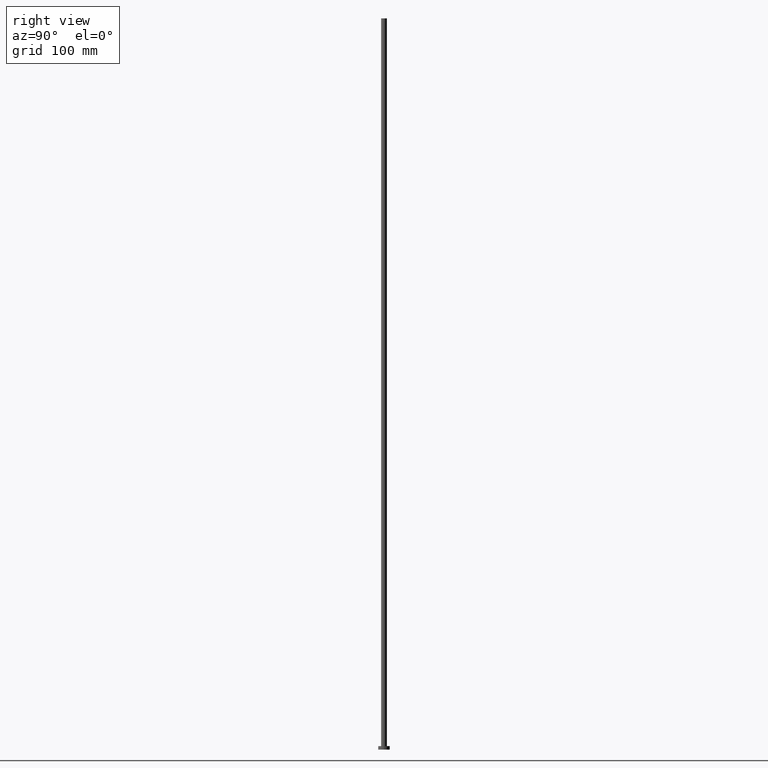
[diagram: clean part render]
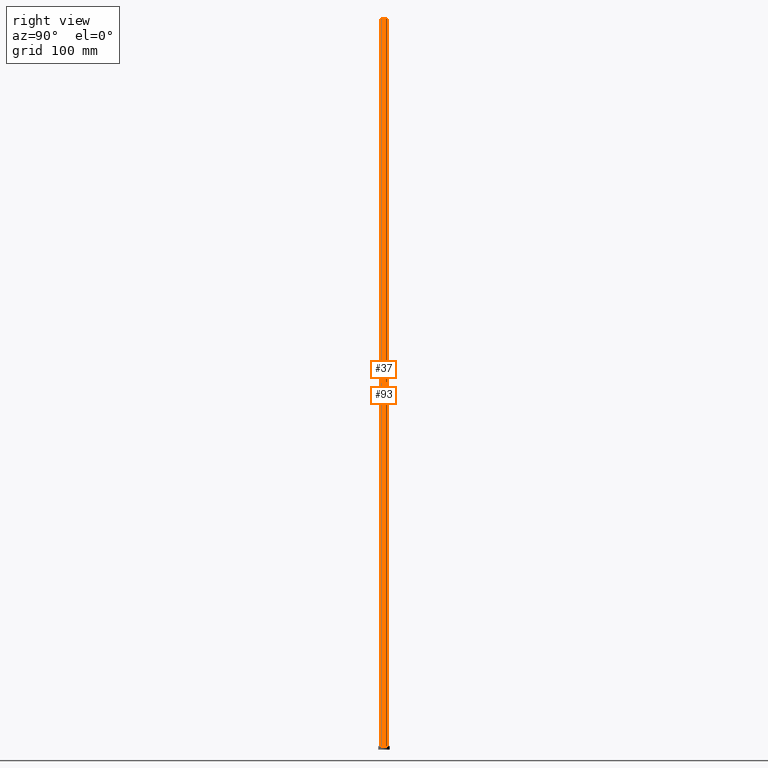
[diagram: same view with one multi-face feature highlighted, each face labeled with its STEP entity id]
A machine part, right view. The highlighted faces form ONE feature: a constant-radius fillet chain: 2 tangent blend faces with common blend radius 2.5 mm. The faces share edges in the B-rep.
Their STEP definitions:
[1] entity #93 (Cylinder):
#1 = ORIENTED_EDGE ( 'NONE', *, *, #57, .T. ) ;
#4 = EDGE_CURVE ( 'NONE', #45, #6, #225, .T. ) ;
#6 = VERTEX_POINT ( 'NONE', #233 ) ;
#31 = FACE_OUTER_BOUND ( 'NONE', #213, .T. ) ;
#38 = CARTESIAN_POINT ( 'NONE',  ( -2.500000000000000000, 0.000000000000000000, 630.0000000000000000 ) ) ;
#45 = VERTEX_POINT ( 'NONE', #38 ) ;
#51 = VECTOR ( 'NONE', #148, 1000.000000000000000 ) ;
#52 = EDGE_CURVE ( 'NONE', #137, #45, #241, .T. ) ;
#56 = DIRECTION ( 'NONE',  ( 1.000000000000000000, 0.000000000000000000, 0.000000000000000000 ) ) ;
#57 = EDGE_CURVE ( 'NONE', #121, #6, #170, .T. ) ;
#92 = DIRECTION ( 'NONE',  ( 0.000000000000000000, 0.000000000000000000, 1.000000000000000000 ) ) ;
#93 = ADVANCED_FACE ( 'NONE', ( #31 ), #203, .T. ) ;
#100 = AXIS2_PLACEMENT_3D ( 'NONE', #183, #246, #56 ) ;
#113 = VECTOR ( 'NONE', #188, 1000.000000000000000 ) ;
#117 = DIRECTION ( 'NONE',  ( -0.000000000000000000, -0.000000000000000000, -1.000000000000000000 ) ) ;
#121 = VERTEX_POINT ( 'NONE', #205 ) ;
#127 = CARTESIAN_POINT ( 'NONE',  ( 2.500000000000000000, 3.061616997868383141E-16, 630.0000000000000000 ) ) ;
#137 = VERTEX_POINT ( 'NONE', #127 ) ;
#148 = DIRECTION ( 'NONE',  ( -0.000000000000000000, -0.000000000000000000, -1.000000000000000000 ) ) ;
#150 = CARTESIAN_POINT ( 'NONE',  ( -2.500000000000000000, 0.000000000000000000, 630.0000000000000000 ) ) ;
#156 = AXIS2_PLACEMENT_3D ( 'NONE', #251, #92, #204 ) ;
#161 = ORIENTED_EDGE ( 'NONE', *, *, #4, .F. ) ;
#170 = CIRCLE ( 'NONE', #156, 2.500000000000000000 ) ;
#175 = AXIS2_PLACEMENT_3D ( 'NONE', #248, #117, #185 ) ;
#183 = CARTESIAN_POINT ( 'NONE',  ( 0.000000000000000000, 0.000000000000000000, 630.0000000000000000 ) ) ;
#184 = CARTESIAN_POINT ( 'NONE',  ( 2.500000000000000000, 3.061616997868383141E-16, 630.0000000000000000 ) ) ;
#185 = DIRECTION ( 'NONE',  ( -1.000000000000000000, 0.000000000000000000, 0.000000000000000000 ) ) ;
#188 = DIRECTION ( 'NONE',  ( -0.000000000000000000, -0.000000000000000000, -1.000000000000000000 ) ) ;
#201 = ORIENTED_EDGE ( 'NONE', *, *, #52, .F. ) ;
#203 = CYLINDRICAL_SURFACE ( 'NONE', #175, 2.500000000000000000 ) ;
#204 = DIRECTION ( 'NONE',  ( 1.000000000000000000, 0.000000000000000000, 0.000000000000000000 ) ) ;
#205 = CARTESIAN_POINT ( 'NONE',  ( 2.500000000000000000, 3.061616997868383141E-16, 3.000000000000000000 ) ) ;
#213 = EDGE_LOOP ( 'NONE', ( #201, #220, #1, #161 ) ) ;
#220 = ORIENTED_EDGE ( 'NONE', *, *, #228, .T. ) ;
#225 = LINE ( 'NONE', #150, #113 ) ;
#228 = EDGE_CURVE ( 'NONE', #137, #121, #231, .T. ) ;
#231 = LINE ( 'NONE', #184, #51 ) ;
#233 = CARTESIAN_POINT ( 'NONE',  ( -2.500000000000000000, 0.000000000000000000, 3.000000000000000000 ) ) ;
#241 = CIRCLE ( 'NONE', #100, 2.500000000000000000 ) ;
#246 = DIRECTION ( 'NONE',  ( 0.000000000000000000, 0.000000000000000000, 1.000000000000000000 ) ) ;
#248 = CARTESIAN_POINT ( 'NONE',  ( 0.000000000000000000, 0.000000000000000000, 630.0000000000000000 ) ) ;
#251 = CARTESIAN_POINT ( 'NONE',  ( 0.000000000000000000, 0.000000000000000000, 3.000000000000000000 ) ) ;
[2] entity #37 (Cylinder):
#4 = EDGE_CURVE ( 'NONE', #45, #6, #225, .T. ) ;
#5 = ORIENTED_EDGE ( 'NONE', *, *, #149, .F. ) ;
#6 = VERTEX_POINT ( 'NONE', #233 ) ;
#8 = CYLINDRICAL_SURFACE ( 'NONE', #255, 2.500000000000000000 ) ;
#10 = FACE_OUTER_BOUND ( 'NONE', #28, .T. ) ;
#16 = ORIENTED_EDGE ( 'NONE', *, *, #216, .T. ) ;
#28 = EDGE_LOOP ( 'NONE', ( #238, #5, #174, #16 ) ) ;
#32 = DIRECTION ( 'NONE',  ( 0.000000000000000000, 0.000000000000000000, 1.000000000000000000 ) ) ;
#37 = ADVANCED_FACE ( 'NONE', ( #10 ), #8, .T. ) ;
#38 = CARTESIAN_POINT ( 'NONE',  ( -2.500000000000000000, 0.000000000000000000, 630.0000000000000000 ) ) ;
#45 = VERTEX_POINT ( 'NONE', #38 ) ;
#51 = VECTOR ( 'NONE', #148, 1000.000000000000000 ) ;
#73 = DIRECTION ( 'NONE',  ( -1.000000000000000000, 0.000000000000000000, 0.000000000000000000 ) ) ;
#76 = DIRECTION ( 'NONE',  ( 1.000000000000000000, 0.000000000000000000, 0.000000000000000000 ) ) ;
#96 = CARTESIAN_POINT ( 'NONE',  ( 0.000000000000000000, 0.000000000000000000, 630.0000000000000000 ) ) ;
#101 = CIRCLE ( 'NONE', #210, 2.500000000000000000 ) ;
#113 = VECTOR ( 'NONE', #188, 1000.000000000000000 ) ;
#121 = VERTEX_POINT ( 'NONE', #205 ) ;
#124 = CIRCLE ( 'NONE', #165, 2.500000000000000000 ) ;
#127 = CARTESIAN_POINT ( 'NONE',  ( 2.500000000000000000, 3.061616997868383141E-16, 630.0000000000000000 ) ) ;
#133 = CARTESIAN_POINT ( 'NONE',  ( 0.000000000000000000, 0.000000000000000000, 630.0000000000000000 ) ) ;
#137 = VERTEX_POINT ( 'NONE', #127 ) ;
#148 = DIRECTION ( 'NONE',  ( -0.000000000000000000, -0.000000000000000000, -1.000000000000000000 ) ) ;
#149 = EDGE_CURVE ( 'NONE', #45, #137, #124, .T. ) ;
#150 = CARTESIAN_POINT ( 'NONE',  ( -2.500000000000000000, 0.000000000000000000, 630.0000000000000000 ) ) ;
#165 = AXIS2_PLACEMENT_3D ( 'NONE', #96, #172, #230 ) ;
#172 = DIRECTION ( 'NONE',  ( 0.000000000000000000, 0.000000000000000000, 1.000000000000000000 ) ) ;
#174 = ORIENTED_EDGE ( 'NONE', *, *, #4, .T. ) ;
#184 = CARTESIAN_POINT ( 'NONE',  ( 2.500000000000000000, 3.061616997868383141E-16, 630.0000000000000000 ) ) ;
#188 = DIRECTION ( 'NONE',  ( -0.000000000000000000, -0.000000000000000000, -1.000000000000000000 ) ) ;
#205 = CARTESIAN_POINT ( 'NONE',  ( 2.500000000000000000, 3.061616997868383141E-16, 3.000000000000000000 ) ) ;
#209 = DIRECTION ( 'NONE',  ( -0.000000000000000000, -0.000000000000000000, -1.000000000000000000 ) ) ;
#210 = AXIS2_PLACEMENT_3D ( 'NONE', #250, #32, #76 ) ;
#216 = EDGE_CURVE ( 'NONE', #6, #121, #101, .T. ) ;
#225 = LINE ( 'NONE', #150, #113 ) ;
#228 = EDGE_CURVE ( 'NONE', #137, #121, #231, .T. ) ;
#230 = DIRECTION ( 'NONE',  ( 1.000000000000000000, 0.000000000000000000, 0.000000000000000000 ) ) ;
#231 = LINE ( 'NONE', #184, #51 ) ;
#233 = CARTESIAN_POINT ( 'NONE',  ( -2.500000000000000000, 0.000000000000000000, 3.000000000000000000 ) ) ;
#238 = ORIENTED_EDGE ( 'NONE', *, *, #228, .F. ) ;
#250 = CARTESIAN_POINT ( 'NONE',  ( 0.000000000000000000, 0.000000000000000000, 3.000000000000000000 ) ) ;
#255 = AXIS2_PLACEMENT_3D ( 'NONE', #133, #209, #73 ) ;